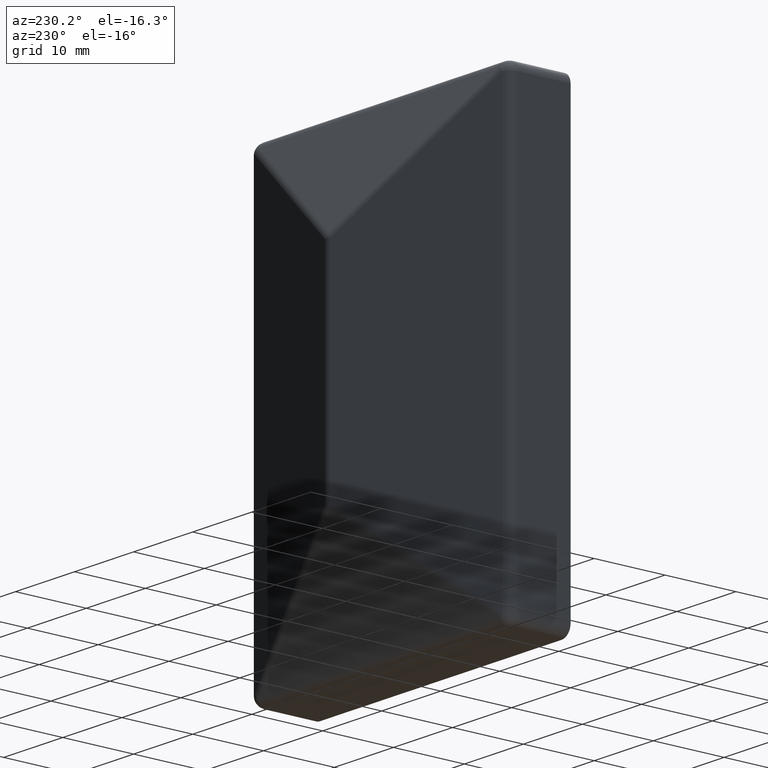
[diagram: clean part render]
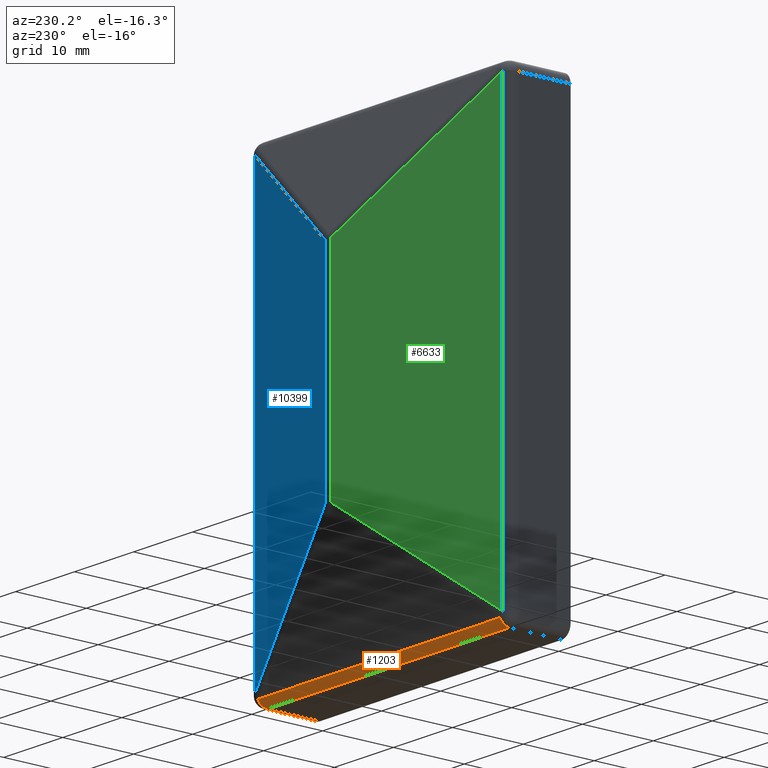
[diagram: same view with three faces highlighted in distinct colors, each labeled with its STEP entity id]
A machine part, auxiliary view with three faces highlighted in distinct colors.
Their STEP definitions:

[orange] entity #1203 — the highlighted cylindrical surface (edge-blend (fillet) strip) has radius 1.5 mm, axis along (1, -0, -0).
#625 = CARTESIAN_POINT ( 'NONE',  ( -22.00000000000000711, 8.712762266290082991, -31.12680061070161841 ) ) ;
#1203 = ADVANCED_FACE ( 'NONE', ( #1788 ), #7409, .T. ) ;
#1334 = ORIENTED_EDGE ( 'NONE', *, *, #2605, .T. ) ;
#1533 = DIRECTION ( 'NONE',  ( 0.000000000000000000, 0.000000000000000000, -1.000000000000000000 ) ) ;
#1609 = CIRCLE ( 'NONE', #3420, 1.500000000000001332 ) ;
#1678 = VERTEX_POINT ( 'NONE', #3251 ) ;
#1730 = DIRECTION ( 'NONE',  ( 0.000000000000000000, 0.000000000000000000, -1.000000000000000000 ) ) ;
#1767 = VECTOR ( 'NONE', #1773, 1000.000000000000000 ) ;
#1773 = DIRECTION ( 'NONE',  ( 1.000000000000000000, -0.000000000000000000, -0.000000000000000000 ) ) ;
#1788 = FACE_OUTER_BOUND ( 'NONE', #10389, .T. ) ;
#1863 = DIRECTION ( 'NONE',  ( 1.000000000000000000, -0.000000000000000000, -0.000000000000000000 ) ) ;
#2060 = EDGE_CURVE ( 'NONE', #10574, #7157, #8276, .T. ) ;
#2438 = ORIENTED_EDGE ( 'NONE', *, *, #7719, .T. ) ;
#2605 = EDGE_CURVE ( 'NONE', #1678, #7157, #1609, .T. ) ;
#3057 = VERTEX_POINT ( 'NONE', #5165 ) ;
#3251 = CARTESIAN_POINT ( 'NONE',  ( 20.50000000000000355, 8.712762266290082991, -31.12680061070161841 ) ) ;
#3420 = AXIS2_PLACEMENT_3D ( 'NONE', #5876, #4740, #1533 ) ;
#3987 = EDGE_CURVE ( 'NONE', #3057, #1678, #8446, .T. ) ;
#4232 = CIRCLE ( 'NONE', #6349, 1.500000000000001332 ) ;
#4683 = CARTESIAN_POINT ( 'NONE',  ( 20.49999999999998934, 7.349999999999999645, -32.00000000000000000 ) ) ;
#4740 = DIRECTION ( 'NONE',  ( -1.000000000000000000, 0.000000000000000000, 0.000000000000000000 ) ) ;
#5070 = ORIENTED_EDGE ( 'NONE', *, *, #2060, .F. ) ;
#5165 = CARTESIAN_POINT ( 'NONE',  ( -20.49999999999999645, 8.712762266290082991, -31.12680061070161841 ) ) ;
#5242 = DIRECTION ( 'NONE',  ( 0.000000000000000000, 0.000000000000000000, -1.000000000000000000 ) ) ;
#5499 = CARTESIAN_POINT ( 'NONE',  ( -22.00000000000000711, 7.349999999999999645, -32.00000000000000000 ) ) ;
#5876 = CARTESIAN_POINT ( 'NONE',  ( 20.50000000000000355, 7.349999999999999645, -30.50000000000000000 ) ) ;
#6052 = DIRECTION ( 'NONE',  ( 1.000000000000000000, -0.000000000000000000, -0.000000000000000000 ) ) ;
#6349 = AXIS2_PLACEMENT_3D ( 'NONE', #12635, #6052, #1730 ) ;
#6710 = DIRECTION ( 'NONE',  ( 1.000000000000000000, -0.000000000000000000, -0.000000000000000000 ) ) ;
#7157 = VERTEX_POINT ( 'NONE', #4683 ) ;
#7409 = CYLINDRICAL_SURFACE ( 'NONE', #14022, 1.500000000000001332 ) ;
#7719 = EDGE_CURVE ( 'NONE', #10574, #3057, #4232, .T. ) ;
#8276 = LINE ( 'NONE', #5499, #11687 ) ;
#8446 = LINE ( 'NONE', #625, #1767 ) ;
#9964 = ORIENTED_EDGE ( 'NONE', *, *, #3987, .T. ) ;
#10389 = EDGE_LOOP ( 'NONE', ( #9964, #1334, #5070, #2438 ) ) ;
#10574 = VERTEX_POINT ( 'NONE', #11559 ) ;
#11559 = CARTESIAN_POINT ( 'NONE',  ( -20.50000000000000355, 7.349999999999999645, -32.00000000000000000 ) ) ;
#11687 = VECTOR ( 'NONE', #6710, 1000.000000000000000 ) ;
#12635 = CARTESIAN_POINT ( 'NONE',  ( -20.49999999999999645, 7.349999999999999645, -30.50000000000000000 ) ) ;
#13987 = CARTESIAN_POINT ( 'NONE',  ( -22.00000000000000711, 7.349999999999999645, -30.50000000000000000 ) ) ;
#14022 = AXIS2_PLACEMENT_3D ( 'NONE', #13987, #1863, #5242 ) ;

[blue] entity #10399 — the highlighted planar face has unit normal (-0.3293, -0.9442, 0).
#197 = DIRECTION ( 'NONE',  ( -0.000000000000000000, -0.000000000000000000, 1.000000000000000000 ) ) ;
#234 = VERTEX_POINT ( 'NONE', #13273 ) ;
#418 = PLANE ( 'NONE',  #6831 ) ;
#979 = CARTESIAN_POINT ( 'NONE',  ( 0.4939866130988169179, 15.91632525433926659, -32.00000000000000000 ) ) ;
#1647 = ORIENTED_EDGE ( 'NONE', *, *, #5903, .F. ) ;
#1986 = DIRECTION ( 'NONE',  ( -0.000000000000000000, -0.000000000000000000, 1.000000000000000000 ) ) ;
#3943 = ORIENTED_EDGE ( 'NONE', *, *, #10407, .T. ) ;
#4376 = CARTESIAN_POINT ( 'NONE',  ( 0.4939866130988166959, 15.91632525433926659, -32.00000000000000000 ) ) ;
#5088 = VECTOR ( 'NONE', #7040, 1000.000000000000114 ) ;
#5903 = EDGE_CURVE ( 'NONE', #10880, #234, #11280, .T. ) ;
#6061 = DIRECTION ( 'NONE',  ( -0.7677169245586215052, 0.2677646834436171464, 0.5821621750393882744 ) ) ;
#6524 = EDGE_CURVE ( 'NONE', #7081, #12021, #7149, .T. ) ;
#6629 = EDGE_LOOP ( 'NONE', ( #1647, #11908, #7651, #3943 ) ) ;
#6736 = CARTESIAN_POINT ( 'NONE',  ( 20.99398661309881575, 8.766325254339259132, -32.00000000000000000 ) ) ;
#6831 = AXIS2_PLACEMENT_3D ( 'NONE', #4376, #10568, #8941 ) ;
#7040 = DIRECTION ( 'NONE',  ( 0.7677169245586215052, -0.2677646834436171464, 0.5821621750393882744 ) ) ;
#7081 = VERTEX_POINT ( 'NONE', #12293 ) ;
#7149 = LINE ( 'NONE', #979, #14006 ) ;
#7651 = ORIENTED_EDGE ( 'NONE', *, *, #6524, .T. ) ;
#8381 = VECTOR ( 'NONE', #197, 1000.000000000000000 ) ;
#8941 = DIRECTION ( 'NONE',  ( 0.9442168362261714742, -0.3293244087325430391, 0.000000000000000000 ) ) ;
#9176 = CARTESIAN_POINT ( 'NONE',  ( -20.49178569042087972, 23.23575315532297125, -0.9587925116944229220 ) ) ;
#9775 = CARTESIAN_POINT ( 'NONE',  ( 0.4939866130988168069, 15.91632525433926659, 14.95478508218536007 ) ) ;
#10222 = LINE ( 'NONE', #9176, #5088 ) ;
#10399 = ADVANCED_FACE ( 'NONE', ( #13132 ), #418, .F. ) ;
#10407 = EDGE_CURVE ( 'NONE', #12021, #234, #10222, .T. ) ;
#10533 = CARTESIAN_POINT ( 'NONE',  ( 8.112102604977332376, 13.25927504253773392, -20.73162656328742770 ) ) ;
#10568 = DIRECTION ( 'NONE',  ( -0.3293244087325430947, -0.9442168362261715853, 0.000000000000000000 ) ) ;
#10880 = VERTEX_POINT ( 'NONE', #12793 ) ;
#11280 = LINE ( 'NONE', #6736, #8381 ) ;
#11908 = ORIENTED_EDGE ( 'NONE', *, *, #13255, .T. ) ;
#12021 = VERTEX_POINT ( 'NONE', #9775 ) ;
#12293 = CARTESIAN_POINT ( 'NONE',  ( 0.4939866130988163628, 15.91632525433926659, -14.95478508218537073 ) ) ;
#12586 = LINE ( 'NONE', #10533, #12749 ) ;
#12749 = VECTOR ( 'NONE', #6061, 1000.000000000000114 ) ;
#12793 = CARTESIAN_POINT ( 'NONE',  ( 20.99398661309881575, 8.766325254339259132, -30.50000000000000000 ) ) ;
#13132 = FACE_OUTER_BOUND ( 'NONE', #6629, .T. ) ;
#13255 = EDGE_CURVE ( 'NONE', #10880, #7081, #12586, .T. ) ;
#13273 = CARTESIAN_POINT ( 'NONE',  ( 20.99398661309881575, 8.766325254339259132, 30.50000000000000000 ) ) ;
#14006 = VECTOR ( 'NONE', #1986, 1000.000000000000000 ) ;

[green] entity #6633 — the highlighted planar face has unit normal (0.3293, -0.9442, 0).
#42 = VECTOR ( 'NONE', #13355, 1000.000000000000000 ) ;
#1719 = EDGE_CURVE ( 'NONE', #13985, #5252, #2952, .T. ) ;
#1891 = EDGE_CURVE ( 'NONE', #13985, #2311, #7053, .T. ) ;
#2311 = VERTEX_POINT ( 'NONE', #8260 ) ;
#2952 = LINE ( 'NONE', #7854, #42 ) ;
#3298 = VECTOR ( 'NONE', #7317, 1000.000000000000000 ) ;
#4227 = DIRECTION ( 'NONE',  ( 0.7677169245586216162, 0.2677646834436170353, -0.5821621750393881634 ) ) ;
#4755 = CARTESIAN_POINT ( 'NONE',  ( -20.99398661309881220, 8.766325254339260908, 30.50000000000000000 ) ) ;
#4972 = ORIENTED_EDGE ( 'NONE', *, *, #1719, .T. ) ;
#5118 = ORIENTED_EDGE ( 'NONE', *, *, #8940, .T. ) ;
#5124 = AXIS2_PLACEMENT_3D ( 'NONE', #7638, #6348, #5310 ) ;
#5252 = VERTEX_POINT ( 'NONE', #10291 ) ;
#5310 = DIRECTION ( 'NONE',  ( 0.9442168362261714742, 0.3293244087325429836, 0.000000000000000000 ) ) ;
#5450 = VECTOR ( 'NONE', #13660, 1000.000000000000000 ) ;
#5619 = EDGE_LOOP ( 'NONE', ( #6268, #4972, #5118, #12616 ) ) ;
#6268 = ORIENTED_EDGE ( 'NONE', *, *, #1891, .F. ) ;
#6335 = CARTESIAN_POINT ( 'NONE',  ( 6.939498050375997096, 18.50897966135609352, 9.317950122088038967 ) ) ;
#6348 = DIRECTION ( 'NONE',  ( 0.3293244087325430391, -0.9442168362261715853, 0.000000000000000000 ) ) ;
#6633 = ADVANCED_FACE ( 'NONE', ( #8553 ), #11854, .F. ) ;
#7053 = LINE ( 'NONE', #11666, #3298 ) ;
#7317 = DIRECTION ( 'NONE',  ( -0.000000000000000000, -0.000000000000000000, 1.000000000000000000 ) ) ;
#7638 = CARTESIAN_POINT ( 'NONE',  ( -20.99398661309881220, 8.766325254339260908, -32.00000000000000000 ) ) ;
#7854 = CARTESIAN_POINT ( 'NONE',  ( -21.66439024502221145, 8.532501548570856187, -31.00836919706988226 ) ) ;
#8260 = CARTESIAN_POINT ( 'NONE',  ( -0.4939866130988100901, 15.91632525433926659, 14.95478508218533342 ) ) ;
#8553 = FACE_OUTER_BOUND ( 'NONE', #5619, .T. ) ;
#8940 = EDGE_CURVE ( 'NONE', #5252, #9175, #13829, .T. ) ;
#9041 = EDGE_CURVE ( 'NONE', #9175, #2311, #13474, .T. ) ;
#9175 = VERTEX_POINT ( 'NONE', #4755 ) ;
#10291 = CARTESIAN_POINT ( 'NONE',  ( -20.99398661309881220, 8.766325254339260908, -30.50000000000000000 ) ) ;
#10963 = CARTESIAN_POINT ( 'NONE',  ( -0.4939866130988113668, 15.91632525433926659, -14.95478508218535829 ) ) ;
#11425 = CARTESIAN_POINT ( 'NONE',  ( -20.99398661309881220, 8.766325254339260908, -32.00000000000000000 ) ) ;
#11666 = CARTESIAN_POINT ( 'NONE',  ( -0.4939866130988166959, 15.91632525433926659, -32.00000000000000000 ) ) ;
#11854 = PLANE ( 'NONE',  #5124 ) ;
#12106 = VECTOR ( 'NONE', #4227, 1000.000000000000000 ) ;
#12616 = ORIENTED_EDGE ( 'NONE', *, *, #9041, .T. ) ;
#13355 = DIRECTION ( 'NONE',  ( -0.7677169245586216162, -0.2677646834436170353, -0.5821621750393881634 ) ) ;
#13474 = LINE ( 'NONE', #6335, #12106 ) ;
#13660 = DIRECTION ( 'NONE',  ( -0.000000000000000000, -0.000000000000000000, 1.000000000000000000 ) ) ;
#13829 = LINE ( 'NONE', #11425, #5450 ) ;
#13985 = VERTEX_POINT ( 'NONE', #10963 ) ;